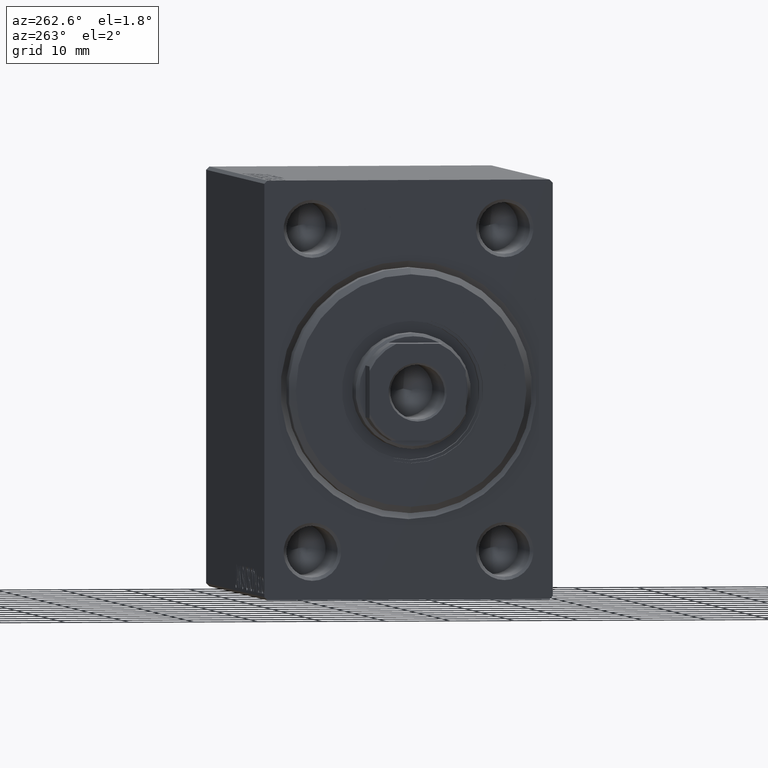
[diagram: clean part render]
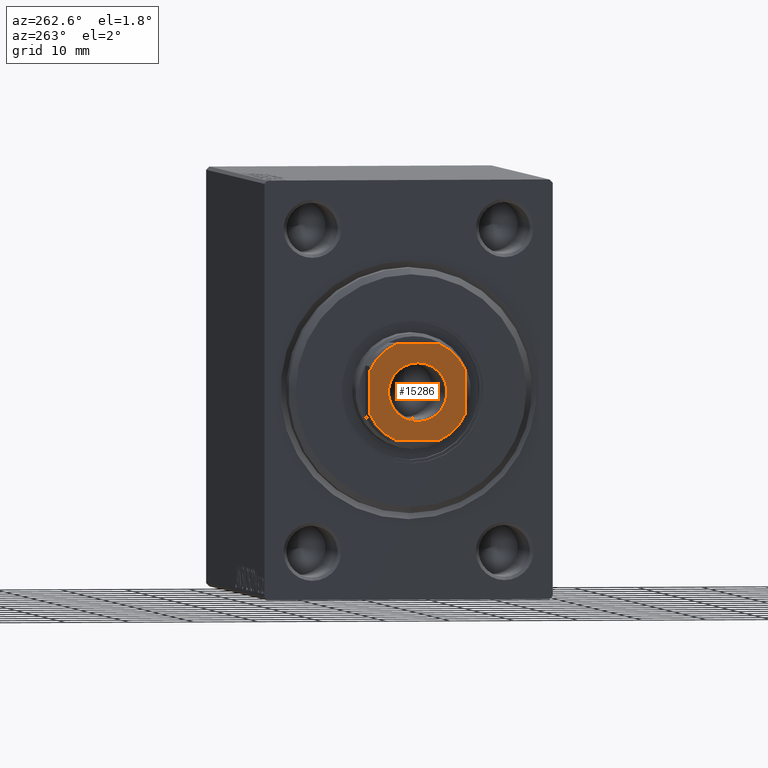
[diagram: same view with one face highlighted and labeled with its STEP entity id]
A machine part, auxiliary view. The second image highlights one B-rep face of the part: STEP entity #15286.
In plain terms, the highlighted planar face has unit normal (-1, 0, 0).
Its self-contained STEP definition (entity closure, byte-faithful):
#1347 = VERTEX_POINT ( 'NONE', #43002 ) ;
#1618 = CARTESIAN_POINT ( 'NONE',  ( -4.549999999999991829, 5.572142936120446480E-16, 75.00000000000001421 ) ) ;
#2300 = AXIS2_PLACEMENT_3D ( 'NONE', #8219, #38846, #21823 ) ;
#2721 = EDGE_CURVE ( 'NONE', #38033, #34245, #42061, .T. ) ;
#2761 = CARTESIAN_POINT ( 'NONE',  ( 3.315116890850187570, -7.499999999999996447, 75.00000000000001421 ) ) ;
#2906 = CARTESIAN_POINT ( 'NONE',  ( -7.499999999999999112, -7.499999999999998224, 75.00000000000001421 ) ) ;
#2989 = EDGE_LOOP ( 'NONE', ( #35090, #27439, #39894, #23031, #15187, #22636, #6992, #29195 ) ) ;
#5159 = EDGE_CURVE ( 'NONE', #34245, #21467, #41555, .T. ) ;
#5213 = AXIS2_PLACEMENT_3D ( 'NONE', #14039, #17602, #10471 ) ;
#5682 = EDGE_CURVE ( 'NONE', #6226, #16837, #17670, .T. ) ;
#6226 = VERTEX_POINT ( 'NONE', #40611 ) ;
#6992 = ORIENTED_EDGE ( 'NONE', *, *, #17804, .T. ) ;
#7003 = DIRECTION ( 'NONE',  ( -0.000000000000000000, 0.000000000000000000, 1.000000000000000000 ) ) ;
#7471 = EDGE_CURVE ( 'NONE', #16837, #19240, #38477, .T. ) ;
#8219 = CARTESIAN_POINT ( 'NONE',  ( 0.000000000000000000, 0.000000000000000000, 75.00000000000001421 ) ) ;
#8698 = LINE ( 'NONE', #33930, #10310 ) ;
#9466 = VERTEX_POINT ( 'NONE', #1618 ) ;
#9785 = DIRECTION ( 'NONE',  ( -1.000000000000000000, 5.782411586589357392E-17, -0.000000000000000000 ) ) ;
#10310 = VECTOR ( 'NONE', #9785, 1000.000000000000000 ) ;
#10471 = DIRECTION ( 'NONE',  ( 1.000000000000000000, 0.000000000000000000, 0.000000000000000000 ) ) ;
#11532 = CIRCLE ( 'NONE', #37936, 8.200000000000002842 ) ;
#12854 = VECTOR ( 'NONE', #24621, 1000.000000000000000 ) ;
#13046 = VECTOR ( 'NONE', #26363, 1000.000000000000000 ) ;
#14039 = CARTESIAN_POINT ( 'NONE',  ( 0.000000000000000000, 0.000000000000000000, 75.00000000000001421 ) ) ;
#14525 = DIRECTION ( 'NONE',  ( -0.000000000000000000, 0.000000000000000000, 1.000000000000000000 ) ) ;
#15110 = CARTESIAN_POINT ( 'NONE',  ( -3.315116890850222653, -7.499999999999998224, 75.00000000000001421 ) ) ;
#15187 = ORIENTED_EDGE ( 'NONE', *, *, #5682, .T. ) ;
#15286 = ADVANCED_FACE ( 'NONE', ( #19628, #19401 ), #23656, .T. ) ;
#15501 = EDGE_CURVE ( 'NONE', #21467, #34782, #43721, .T. ) ;
#16818 = CARTESIAN_POINT ( 'NONE',  ( 7.499999999999998224, -3.315116890850184461, 75.00000000000001421 ) ) ;
#16837 = VERTEX_POINT ( 'NONE', #32139 ) ;
#17030 = CARTESIAN_POINT ( 'NONE',  ( 0.000000000000000000, 0.000000000000000000, 75.00000000000001421 ) ) ;
#17110 = CARTESIAN_POINT ( 'NONE',  ( -3.315116890850159148, 7.500000000000000888, 75.00000000000001421 ) ) ;
#17211 = AXIS2_PLACEMENT_3D ( 'NONE', #17030, #41197, #37615 ) ;
#17602 = DIRECTION ( 'NONE',  ( 0.000000000000000000, -0.000000000000000000, -1.000000000000000000 ) ) ;
#17670 = LINE ( 'NONE', #31964, #12854 ) ;
#17804 = EDGE_CURVE ( 'NONE', #19240, #38033, #19424, .T. ) ;
#18695 = CARTESIAN_POINT ( 'NONE',  ( 7.499999999999998224, 3.315116890850192899, 75.00000000000001421 ) ) ;
#19188 = AXIS2_PLACEMENT_3D ( 'NONE', #43672, #7003, #40988 ) ;
#19240 = VERTEX_POINT ( 'NONE', #15110 ) ;
#19401 = FACE_OUTER_BOUND ( 'NONE', #2989, .T. ) ;
#19424 = LINE ( 'NONE', #2906, #13046 ) ;
#19628 = FACE_BOUND ( 'NONE', #27990, .T. ) ;
#20069 = DIRECTION ( 'NONE',  ( 1.000000000000000000, 0.000000000000000000, 0.000000000000000000 ) ) ;
#20299 = DIRECTION ( 'NONE',  ( -0.000000000000000000, 0.000000000000000000, 1.000000000000000000 ) ) ;
#20529 = EDGE_CURVE ( 'NONE', #34782, #28975, #8698, .T. ) ;
#21467 = VERTEX_POINT ( 'NONE', #18695 ) ;
#21823 = DIRECTION ( 'NONE',  ( 1.000000000000000000, 0.000000000000000000, 0.000000000000000000 ) ) ;
#22636 = ORIENTED_EDGE ( 'NONE', *, *, #7471, .T. ) ;
#22930 = CIRCLE ( 'NONE', #17211, 4.549999999999991829 ) ;
#23031 = ORIENTED_EDGE ( 'NONE', *, *, #35377, .T. ) ;
#23145 = CARTESIAN_POINT ( 'NONE',  ( 3.315116890850187126, 7.500000000000000888, 75.00000000000001421 ) ) ;
#23656 = PLANE ( 'NONE',  #34397 ) ;
#24601 = DIRECTION ( 'NONE',  ( 1.000000000000000000, 0.000000000000000000, 0.000000000000000000 ) ) ;
#24621 = DIRECTION ( 'NONE',  ( 1.734723475976807094E-16, -1.000000000000000000, 0.000000000000000000 ) ) ;
#25917 = ORIENTED_EDGE ( 'NONE', *, *, #35220, .T. ) ;
#26363 = DIRECTION ( 'NONE',  ( 1.000000000000000000, 0.000000000000000000, 0.000000000000000000 ) ) ;
#27439 = ORIENTED_EDGE ( 'NONE', *, *, #15501, .T. ) ;
#27908 = CARTESIAN_POINT ( 'NONE',  ( 7.499999999999997335, 7.500000000000000888, 75.00000000000001421 ) ) ;
#27990 = EDGE_LOOP ( 'NONE', ( #25917, #35002 ) ) ;
#28975 = VERTEX_POINT ( 'NONE', #17110 ) ;
#29090 = CARTESIAN_POINT ( 'NONE',  ( 0.000000000000000000, 0.000000000000000000, 75.00000000000001421 ) ) ;
#29195 = ORIENTED_EDGE ( 'NONE', *, *, #2721, .T. ) ;
#30811 = DIRECTION ( 'NONE',  ( -1.156482317317871478E-16, 1.000000000000000000, -0.000000000000000000 ) ) ;
#31964 = CARTESIAN_POINT ( 'NONE',  ( -7.500000000000001776, 7.500000000000001776, 75.00000000000001421 ) ) ;
#32139 = CARTESIAN_POINT ( 'NONE',  ( -7.499999999999999112, -3.315116890850218212, 75.00000000000001421 ) ) ;
#33930 = CARTESIAN_POINT ( 'NONE',  ( -7.500000000000001776, 7.500000000000001776, 75.00000000000001421 ) ) ;
#34245 = VERTEX_POINT ( 'NONE', #16818 ) ;
#34397 = AXIS2_PLACEMENT_3D ( 'NONE', #40426, #20299, #20069 ) ;
#34782 = VERTEX_POINT ( 'NONE', #23145 ) ;
#35002 = ORIENTED_EDGE ( 'NONE', *, *, #40075, .T. ) ;
#35090 = ORIENTED_EDGE ( 'NONE', *, *, #5159, .T. ) ;
#35220 = EDGE_CURVE ( 'NONE', #1347, #9466, #22930, .T. ) ;
#35377 = EDGE_CURVE ( 'NONE', #28975, #6226, #11532, .T. ) ;
#37615 = DIRECTION ( 'NONE',  ( 1.000000000000000000, 0.000000000000000000, 0.000000000000000000 ) ) ;
#37936 = AXIS2_PLACEMENT_3D ( 'NONE', #29090, #42732, #41853 ) ;
#38033 = VERTEX_POINT ( 'NONE', #2761 ) ;
#38477 = CIRCLE ( 'NONE', #19188, 8.200000000000024158 ) ;
#38846 = DIRECTION ( 'NONE',  ( -0.000000000000000000, 0.000000000000000000, 1.000000000000000000 ) ) ;
#39894 = ORIENTED_EDGE ( 'NONE', *, *, #20529, .T. ) ;
#40075 = EDGE_CURVE ( 'NONE', #9466, #1347, #40907, .T. ) ;
#40426 = CARTESIAN_POINT ( 'NONE',  ( 0.000000000000000000, 0.000000000000000000, 75.00000000000001421 ) ) ;
#40611 = CARTESIAN_POINT ( 'NONE',  ( -7.500000000000000888, 3.315116890850160036, 75.00000000000001421 ) ) ;
#40907 = CIRCLE ( 'NONE', #5213, 4.549999999999991829 ) ;
#40988 = DIRECTION ( 'NONE',  ( 1.000000000000000000, 0.000000000000000000, 0.000000000000000000 ) ) ;
#41197 = DIRECTION ( 'NONE',  ( 0.000000000000000000, -0.000000000000000000, -1.000000000000000000 ) ) ;
#41396 = VECTOR ( 'NONE', #30811, 1000.000000000000000 ) ;
#41555 = LINE ( 'NONE', #27908, #41396 ) ;
#41592 = CARTESIAN_POINT ( 'NONE',  ( 0.000000000000000000, 0.000000000000000000, 75.00000000000001421 ) ) ;
#41853 = DIRECTION ( 'NONE',  ( 1.000000000000000000, 0.000000000000000000, 0.000000000000000000 ) ) ;
#42061 = CIRCLE ( 'NONE', #44199, 8.200000000000011724 ) ;
#42732 = DIRECTION ( 'NONE',  ( -0.000000000000000000, 0.000000000000000000, 1.000000000000000000 ) ) ;
#43002 = CARTESIAN_POINT ( 'NONE',  ( 4.549999999999991829, 0.000000000000000000, 75.00000000000001421 ) ) ;
#43672 = CARTESIAN_POINT ( 'NONE',  ( 0.000000000000000000, 0.000000000000000000, 75.00000000000001421 ) ) ;
#43721 = CIRCLE ( 'NONE', #2300, 8.200000000000013500 ) ;
#44199 = AXIS2_PLACEMENT_3D ( 'NONE', #41592, #14525, #24601 ) ;